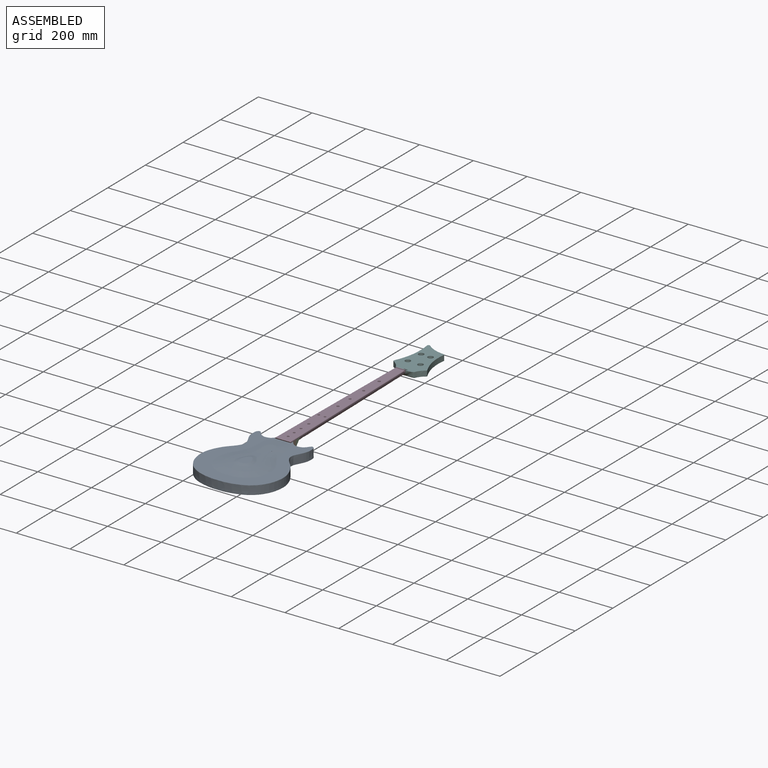
[diagram: assembled view]
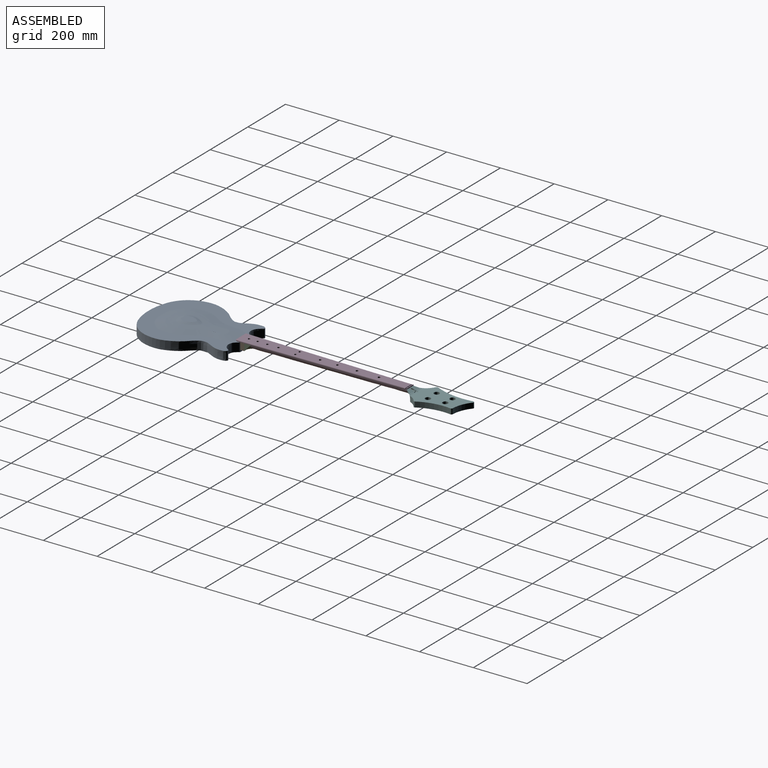
[diagram: assembled view, second angle]
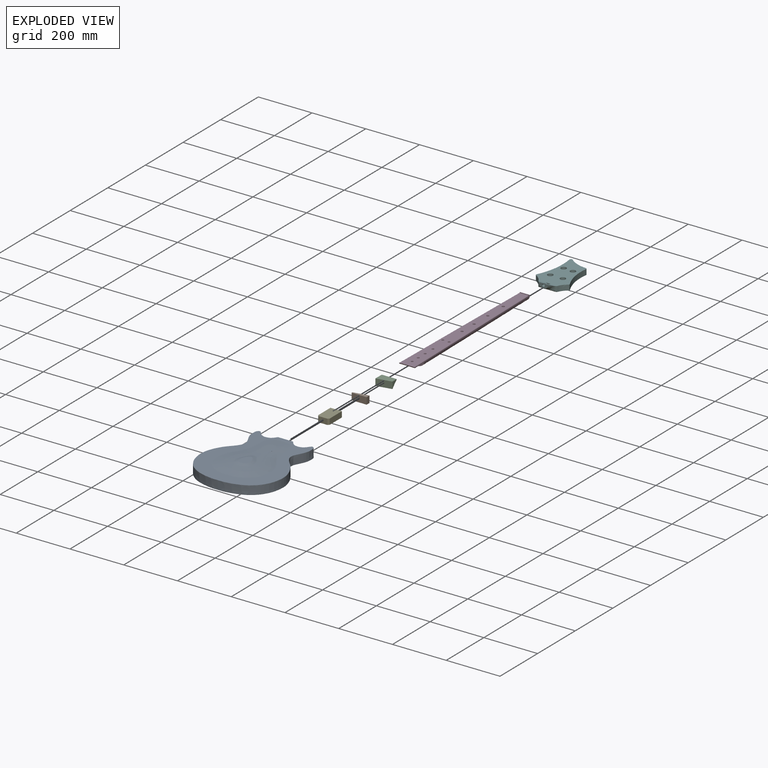
[diagram: exploded view]
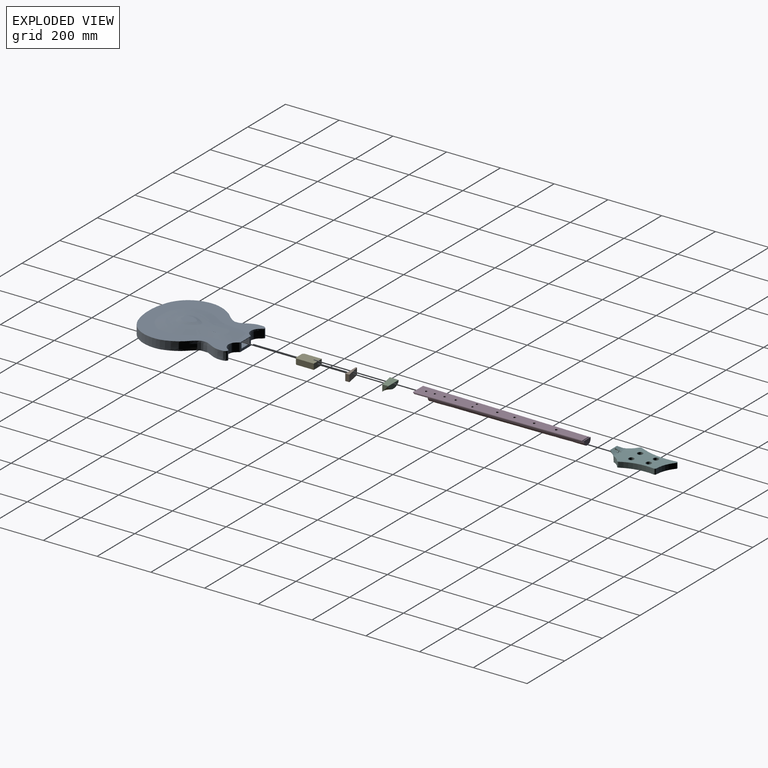
[diagram: exploded view, second angle]
ASSEMBLY  parts=6 mates=5
PART A: 23 faces, bbox 365.2x307.9x44.8 mm
  f0: plane 56.36x32.5mm, normal (1,0,0), area 933.5mm2, adj f5,f8,f9,f10,f16,f17,f18,f19
  f1: bspline ~293.23x96.8mm, area 11734.6mm2, adj f2,f4,f9
  f2: bspline ~293.23x96.83mm, area 11749mm2, adj f1,f3,f9
  f3: bspline ~215.76x63.4mm, area 4028.3mm2, adj f2,f4,f11
  f4: bspline ~215.76x63.36mm, area 4021mm2, adj f1,f3,f12
  f5: extruded ~32.5x2.71mm, area 103.8mm2, adj f0,f6,f9,f10
  f6: extruded ~361.6x153.12mm, area 18286.3mm2, adj f5,f7,f9,f10
  f7: extruded ~361.6x153.12mm, area 18286.3mm2, adj f6,f8,f9,f10
  f8: extruded ~32.5x2.71mm, area 103.8mm2, adj f0,f7,f9,f10
  f9: plane 365.19x307.9mm, normal (0,0,1), area 43367.6mm2, adj f0,f1,f2,f5,f6,f7,f8
  f10: plane 364.12x306.84mm, normal (0,0,-1), area 83541.8mm2, adj f0,f5,f6,f7,f8
  f11: bspline ~127.83x50.51mm, area 2407.1mm2, adj f3,f12,f14
  f12: bspline ~127.74x50.48mm, area 2402.6mm2, adj f4,f11,f15
  f13: plane 53.84x38.08mm, normal (0,0,1), area 1559mm2, adj f14,f15
  f14: bspline ~86.54x33.74mm, area 1431.1mm2, adj f11,f13,f15
  f15: bspline ~86.54x33.54mm, area 1402.9mm2, adj f12,f13,f14
  f16: plane 64.93x21.04mm, normal (0,-1,0), area 1365.8mm2, adj f0,f17,f19,f22
  f17: plane 69.93x42.7mm, normal (0,0,-1), area 2961.1mm2, adj f0,f16,f18,f20,f21,f22
  f18: plane 64.93x21.04mm, normal (0,1,0), area 1365.8mm2, adj f0,f17,f19,f21
  f19: plane 69.93x42.7mm, normal (0,0,1), area 2961.1mm2, adj f0,f16,f18,f20,f21,f22
  f20: plane 32.7x21.04mm, normal (1,0,0), area 687.9mm2, adj f17,f19,f21,f22
  f21: plane 21.04x5mm, normal (0.71,0.71,0), area 148.7mm2, adj f17,f18,f19,f20
  f22: plane 21.04x5mm, normal (0.71,-0.71,0), area 148.7mm2, adj f16,f17,f19,f20
PART B: 6 faces, bbox 56.2x15.2x25.2 mm
  f0: plane 55.9x25.2mm, normal (-0.19,0.98,0), area 1436.2mm2, adj f1,f3,f4,f5
  f1: plane 25.2x4.13mm, normal (-1,0.02,0), area 104.2mm2, adj f0,f2,f4,f5
  f2: plane 56.23x25.2mm, normal (0,-1,0), area 1417.1mm2, adj f1,f3,f4,f5
  f3: plane 25.2x15.24mm, normal (1,0.02,0), area 384mm2, adj f0,f2,f4,f5
  f4: plane 56.23x15.24mm, normal (0,0,-1), area 543.5mm2, adj f0,f1,f2,f3
  f5: plane 56.23x15.24mm, normal (0,0,1), area 543.5mm2, adj f0,f1,f2,f3
PART C: 6 faces, bbox 55.9x33.5x25.2 mm
  f0: plane 55.9x25.2mm, normal (0.19,-0.98,0), area 1436.2mm2, adj f2,f3,f4,f5
  f1: plane 55x18.71mm, normal (0,1,0), area 808mm2, adj f2,f3,f4,f5
  f2: bspline ~25.2x22.38mm, area 282mm2, adj f0,f1,f3,f5
  f3: bspline ~55.9x33.48mm, area 1838.8mm2, adj f0,f1,f2,f4
  f4: bspline ~33.48x25.2mm, area 421.9mm2, adj f0,f1,f3,f5
  f5: plane 55.9x33.48mm, normal (0,0,1), area 1547.1mm2, adj f0,f1,f2,f4
PART D: 38 faces, bbox 57.9x631.1x24.8 mm
  f0: plane 246x4.28mm, normal (0,0,-1), area 5.2mm2, adj f1,f7,f34
  f1: plane 621.5x10.7mm, normal (-1,0.02,0), area 1550.9mm2, adj f0,f4,f13,f34,f35,f37
  f2: plane 621.5x10.8mm, normal (1,0.02,0), area 1550.9mm2, adj f8,f13,f34,f35,f36
  f3: plane 624x51.84mm, normal (0,0,1), area 25002.9mm2, adj f14,f15,f17,f19,f21,f23,f25,f27
  f4: plane 323x5.62mm, normal (0,0,1), area 9mm2, adj f1,f6,f7
  f5: plane 35.04x21.24mm, normal (0,1,0), area 621.7mm2, adj f7,f9,f10,f11,f12
  f6: plane 55x18.71mm, normal (0,-1,0), area 808mm2, adj f4,f7,f8,f13
  f7: bspline ~575x55mm, area 36267.9mm2, adj f0,f4,f5,f6,f8,f9
  f8: plane 575x45.1mm, normal (0,0,1), area 108.3mm2, adj f2,f6,f7,f11,f33,f34
  f9: plane 3x0.1mm, normal (0,0,-1), area 0.1mm2, adj f5,f7,f10,f33
  f10: plane 5x3mm, normal (-1,0.02,0), area 15mm2, adj f5,f9,f12,f33
  f11: plane 5x3mm, normal (1,0.02,0), area 15mm2, adj f5,f8,f12,f33
  f12: plane 35.15x3mm, normal (0,0,1), area 105.3mm2, adj f5,f10,f11,f33
  f13: plane 56.66x50mm, normal (0,0,-1), area 2734.3mm2, adj f1,f2,f6,f14,f35
  f14: cylinder r=4.21mm len=8.42mm, axis (0,0,-1), area 132.2mm2, adj f3,f13
  f15: cylinder r=4.62mm len=9.24mm, axis (0,0,-1), area 145.1mm2, adj f3,f16
  f16: plane 9.24x9.24mm, normal (0,0,1), area 67mm2, adj f15
  f17: cylinder r=4.55mm len=9.11mm, axis (0,0,-1), area 143.1mm2, adj f3,f18
  f18: plane 9.11x9.11mm, normal (0,0,1), area 65.2mm2, adj f17
  f19: cylinder r=4.62mm len=9.24mm, axis (0,0,-1), area 145.2mm2, adj f3,f20
  f20: plane 9.24x9.24mm, normal (0,0,1), area 67.1mm2, adj f19
  f21: cylinder r=4.13mm len=8.25mm, axis (0,0,-1), area 129.6mm2, adj f3,f22
  f22: plane 8.25x8.25mm, normal (0,0,1), area 53.5mm2, adj f21
  f23: cylinder r=4.07mm len=8.14mm, axis (0,0,-1), area 127.9mm2, adj f3,f24
  f24: plane 8.14x8.14mm, normal (0,0,1), area 52.1mm2, adj f23
  f25: cylinder r=4.35mm len=8.7mm, axis (0,0,-1), area 136.7mm2, adj f3,f26
  f26: plane 8.7x8.7mm, normal (0,0,1), area 59.5mm2, adj f25
  f27: cylinder r=4.28mm len=8.56mm, axis (0,0,-1), area 134.4mm2, adj f3,f28
  f28: plane 8.56x8.56mm, normal (0,0,1), area 57.5mm2, adj f27
  f29: cylinder r=4.15mm len=8.29mm, axis (0,0,-1), area 130.3mm2, adj f3,f30
  f30: plane 8.29x8.29mm, normal (0,0,1), area 54mm2, adj f29
  f31: cylinder r=4.92mm len=9.84mm, axis (0,0,-1), area 154.5mm2, adj f3,f32
  f32: plane 9.84x9.84mm, normal (0,0,1), area 76mm2, adj f31
  f33: plane 35.15x5mm, normal (0,-1,0), area 175.7mm2, adj f8,f9,f10,f11,f12
  f34: plane 35.27x5.02mm, normal (0,1,0), area 173.6mm2, adj f0,f1,f2,f3,f8,f36,f37
  f35: plane 57.82x6.07mm, normal (0,-0.71,-0.71), area 397.5mm2, adj f1,f2,f3,f13,f36,f37
  f36: cylinder r=2.5mm len=624.04mm, axis (0.02,-1,0), area 2445.9mm2, adj f2,f3,f34,f35
  f37: cylinder r=2.5mm len=624.04mm, axis (0.02,1,0), area 2445.9mm2, adj f1,f3,f34,f35
PART E: 8 faces, bbox 42.7x70x21 mm
  f0: plane 70x42.7mm, normal (0,0,1), area 2964mm2, adj f1,f3,f4,f5,f6,f7
  f1: plane 65x21mm, normal (-1,0,0), area 1365mm2, adj f0,f2,f5,f6
  f2: plane 70x42.7mm, normal (0,0,-1), area 2964mm2, adj f1,f3,f4,f5,f6,f7
  f3: plane 65x21mm, normal (1,0,0), area 1365mm2, adj f0,f2,f5,f7
  f4: plane 32.7x21mm, normal (0,-1,0), area 686.7mm2, adj f0,f2,f6,f7
  f5: plane 42.7x21mm, normal (0,1,0), area 896.7mm2, adj f0,f1,f2,f3
  f6: plane 21x5mm, normal (-0.71,-0.71,0), area 148.5mm2, adj f0,f1,f2,f4
  f7: plane 21x5mm, normal (0.71,-0.71,0), area 148.5mm2, adj f0,f2,f3,f4
PART F: 31 faces, bbox 124.9x209.1x31.9 mm
  f0: plane 186.17x124.52mm, normal (0,0,1), area 13764.4mm2, adj f1,f3,f4,f5,f6,f7,f12,f15
  f1: plane 28.41x7.14mm, normal (0,0.26,0.97), area 169.5mm2, adj f0,f2,f11,f15,f27,f28,f29
  f2: bspline ~55.5x15.5mm, area 659.7mm2, adj f1,f12,f13,f14,f27
  f3: cylinder r=244.47mm len=144.54mm, axis (0,0,1), area 2965.8mm2, adj f0,f8,f19,f22
  f4: extruded ~28.61x28.6mm, area 807.9mm2, adj f0,f8,f17,f19
  f5: extruded ~28.78x22.58mm, area 727.7mm2, adj f0,f8,f15,f20
  f6: cylinder r=184.07mm len=116.3mm, axis (0,0,1), area 2406.4mm2, adj f0,f8,f20,f21
  f7: cylinder r=115.34mm len=68.68mm, axis (0,0,1), area 1501.2mm2, adj f0,f8,f21,f22
  f8: plane 186.6x124.95mm, normal (0,0,-1), area 13809.6mm2, adj f3,f4,f5,f6,f7,f10,f15,f16
  f9: bspline ~25.3x21.86mm, area 281.4mm2, adj f12,f14,f17,f18
  f10: bspline ~67.88x7.04mm, area 325.6mm2, adj f8,f14,f16,f18
  f11: bspline ~24.07x21.86mm, area 259.2mm2, adj f1,f14,f15,f16
  f12: plane 29.65x7.14mm, normal (0,0.26,0.97), area 174mm2, adj f0,f2,f9,f17,f27,f28,f29
  f13: plane 35x17.5mm, normal (0,-1,0), area 402.4mm2, adj f2,f14,f27
  f14: bspline ~55.5x25.3mm, area 1082.4mm2, adj f2,f9,f10,f11,f13
  f15: bspline ~22.11x3.36mm, area 68.4mm2, adj f0,f1,f5,f8,f11,f16
  f16: bspline ~24.81x9.34mm, area 55.7mm2, adj f8,f10,f11,f15
  f17: bspline ~22.41x3.13mm, area 58.9mm2, adj f0,f4,f8,f9,f12,f18
  f18: bspline ~29.78x10.6mm, area 51.2mm2, adj f8,f9,f10,f17
  f19: cylinder r=5mm len=20mm, axis (0,0,1), area 152.6mm2, adj f0,f3,f4,f8
  f20: cylinder r=5mm len=20mm, axis (0,0,1), area 147.4mm2, adj f0,f5,f6,f8
  f21: cylinder r=5mm len=20mm, axis (0,0,1), area 167.1mm2, adj f0,f6,f7,f8
  f22: cylinder r=5mm len=20mm, axis (0,0,1), area 242.9mm2, adj f0,f3,f7,f8
  f23: cylinder r=10mm len=20mm, axis (0,0,1), area 1256.6mm2, adj f0,f8
  f24: cylinder r=10mm len=20mm, axis (0,0,1), area 1256.6mm2, adj f0,f8
  f25: cylinder r=10mm len=20mm, axis (0,0,1), area 1256.6mm2, adj f0,f8
  f26: cylinder r=10mm len=20mm, axis (0,0,1), area 1256.6mm2, adj f0,f8
  f27: cylinder r=5mm len=15.6mm, axis (0,1,0), area 351.8mm2, adj f1,f2,f12,f13,f28
  f28: plane 14.91x6.7mm, normal (0,1,0), area 45.1mm2, adj f1,f12,f27,f29
  f29: cylinder r=7.5mm len=14.91mm, axis (0,1,0), area 203.8mm2, adj f0,f1,f12,f28,f30
  f30: plane 14.04x4.86mm, normal (0,-1,0), area 49.6mm2, adj f0,f29
PLACE A rot(axis=(0,0,1),90deg) t=(716.51,-479.63,-5.45)mm
PLACE B t=(547.48,547.98,27.05)mm
PLACE C t=(547.48,547.98,27.05)mm
PLACE D t=(547.48,547.98,27.05)mm
PLACE E t=(547.59,547.87,26.62)mm
PLACE F t=(547.48,547.98,28.31)mm
MATE fastened E.f4 <-> A.f20  axis (0,-1,0) through (547.5,-134.63,14.45)mm
MATE fastened D.f6 <-> C.f1  axis (0,-1,0) through (547.48,-27.02,19.11)mm
MATE fastened B.f2 <-> E.f5  axis (0,-1,0) through (547.5,-64.63,14.45)mm
MATE fastened F.f13 <-> D.f5  axis (0,-1,0) through (547.48,547.98,10.81)mm
MATE fastened C.f0 <-> B.f0  axis (0.19,-0.98,0) through (547.41,-54.95,14.45)mm
